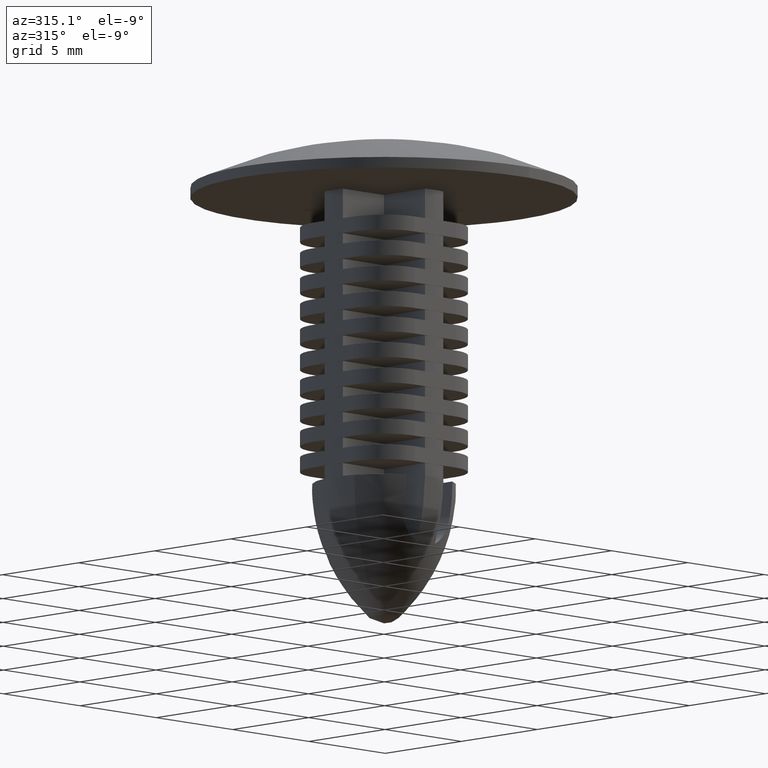
[diagram: clean part render]
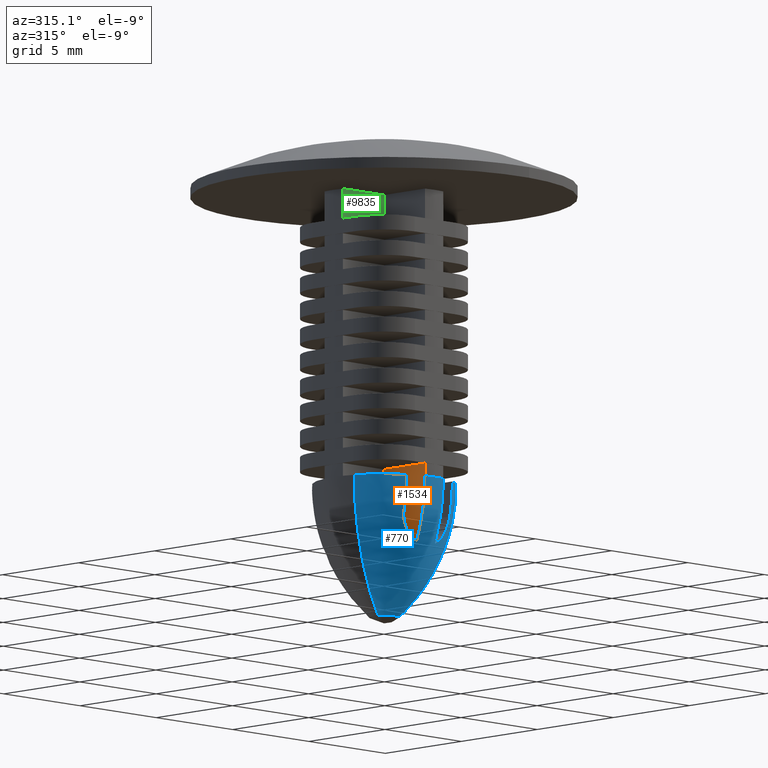
[diagram: same view with three faces highlighted in distinct colors, each labeled with its STEP entity id]
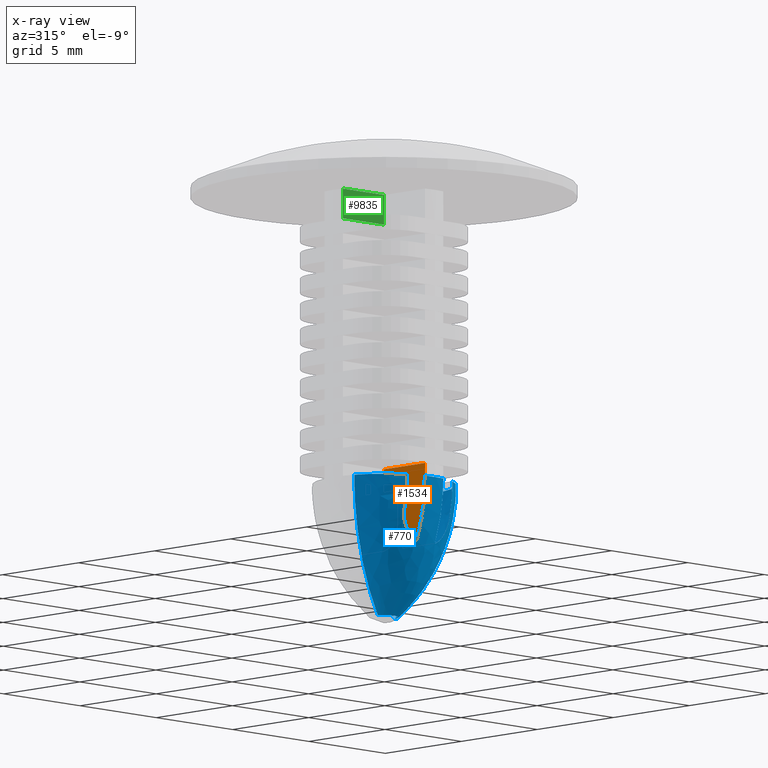
[diagram: x-ray of the same camera — body ghosted, the three highlighted faces saturated]
A machine part, auxiliary view with three faces highlighted in distinct colors.
The next image is the same camera in x-ray (body ghosted, the three faces saturated) — at least one of them is partly hidden behind the body in this view.
Their STEP definitions:

[orange] entity #1534 — the highlighted face is a freeform B-spline surface patch.
#680=CARTESIAN_POINT('',(-0.600000000000009,-3.295830699535320,-16.0));
#681=VERTEX_POINT('',#680);
#695=CARTESIAN_POINT('',(-0.600000000000009,-2.745732762280330,-19.000000000000750));
#696=VERTEX_POINT('',#695);
#697=CARTESIAN_POINT('',(-0.600000000000009,-3.295830699535320,-16.0));
#698=CARTESIAN_POINT('',(-0.600000000000009,-3.295830775537843,-16.513486965900690));
#699=CARTESIAN_POINT('',(-0.600000000000009,-3.249553311811441,-17.023428778580620));
#700=CARTESIAN_POINT('',(-0.600000000000009,-3.144876366745094,-17.593082690397171));
#701=CARTESIAN_POINT('',(-0.600000000000009,-3.132508486333107,-17.656321102280881));
#702=CARTESIAN_POINT('',(-0.600000000000009,-3.106285366387110,-17.782683984900800));
#703=CARTESIAN_POINT('',(-0.600000000000009,-3.092605307555844,-17.844995982628479));
#704=CARTESIAN_POINT('',(-0.600000000000009,-3.049375502360840,-18.031811886654420));
#705=CARTESIAN_POINT('',(-0.600000000000009,-3.017818200647092,-18.155300933164039));
#706=CARTESIAN_POINT('',(-0.600000000000009,-2.915045478865597,-18.522646363084441));
#707=CARTESIAN_POINT('',(-0.600000000000009,-2.835749060682798,-18.763388674102060));
#708=CARTESIAN_POINT('',(-0.600000000000009,-2.745732762280330,-19.000000000000750));
#709=B_SPLINE_CURVE_WITH_KNOTS('',3,(#697,#698,#699,#700,#701,#702,#703,#704,#705,#706,#707,#708),.UNSPECIFIED.,.F.,.U.,(4,2,2,2,2,4),(0.0,0.499999999999997,0.562499999999998,0.625000000000000,0.750000000000000,1.0),.UNSPECIFIED.);
#710=EDGE_CURVE('',#681,#696,#709,.T.);
#986=CARTESIAN_POINT('',(-0.599999999999988,-0.600000000000045,-19.0));
#987=VERTEX_POINT('',#986);
#988=CARTESIAN_POINT('',(-0.599999999999988,-0.600000000000045,-19.0));
#989=CARTESIAN_POINT('',(-0.600000000000009,-2.745732762280330,-19.000000000000750));
#990=QUASI_UNIFORM_CURVE('',1,(#988,#989),.UNSPECIFIED.,.F.,.U.);
#991=EDGE_CURVE('',#987,#696,#990,.T.);
#1166=CARTESIAN_POINT('',(-0.600000000000009,-3.295830699535400,-15.400000000000000));
#1167=VERTEX_POINT('',#1166);
#1181=CARTESIAN_POINT('',(-0.600000000000009,-3.295830699535320,-16.0));
#1182=CARTESIAN_POINT('',(-0.600000000000009,-3.295830699535400,-15.400000000000000));
#1183=QUASI_UNIFORM_CURVE('',1,(#1181,#1182),.UNSPECIFIED.,.F.,.U.);
#1184=EDGE_CURVE('',#681,#1167,#1183,.T.);
#1499=CARTESIAN_POINT('',(-0.600000000000009,-0.599999999999991,-15.400000000000000));
#1500=VERTEX_POINT('',#1499);
#1501=CARTESIAN_POINT('',(-0.599999999999988,-0.600000000000045,-19.0));
#1502=CARTESIAN_POINT('',(-0.600000000000009,-0.599999999999991,-15.400000000000000));
#1503=QUASI_UNIFORM_CURVE('',1,(#1501,#1502),.UNSPECIFIED.,.F.,.U.);
#1504=EDGE_CURVE('',#987,#1500,#1503,.T.);
#1518=CARTESIAN_POINT('',(-0.600000000000009,-3.430487463058681,-15.220179601446770));
#1519=CARTESIAN_POINT('',(-0.600000000000009,-3.430487463058681,-19.179820108875401));
#1520=CARTESIAN_POINT('',(-0.600000000000009,-0.465343188271501,-15.220179601446770));
#1521=CARTESIAN_POINT('',(-0.600000000000009,-0.465343188271501,-19.179820108875401));
#1522=B_SPLINE_SURFACE_WITH_KNOTS('',1,1,((#1518,#1520),(#1519,#1521)),.UNSPECIFIED.,.F.,.F.,.U.,(2,2),(2,2),(0.0,3.959640507428634),(0.0,2.965144274787180),.UNSPECIFIED.);
#1523=ORIENTED_EDGE('',*,*,#1184,.T.);
#1524=CARTESIAN_POINT('',(-0.600000000000009,-3.295830699535400,-15.400000000000000));
#1525=CARTESIAN_POINT('',(-0.600000000000009,-0.599999999999991,-15.400000000000000));
#1526=QUASI_UNIFORM_CURVE('',1,(#1524,#1525),.UNSPECIFIED.,.F.,.U.);
#1527=EDGE_CURVE('',#1167,#1500,#1526,.T.);
#1528=ORIENTED_EDGE('',*,*,#1527,.T.);
#1529=ORIENTED_EDGE('',*,*,#1504,.F.);
#1530=ORIENTED_EDGE('',*,*,#991,.T.);
#1531=ORIENTED_EDGE('',*,*,#710,.F.);
#1532=EDGE_LOOP('',(#1523,#1528,#1529,#1530,#1531));
#1533=FACE_OUTER_BOUND('',#1532,.T.);
#1534=ADVANCED_FACE('',(#1533),#1522,.F.);

[blue] entity #770 — the highlighted face is a freeform B-spline surface patch.
#273=CARTESIAN_POINT('',(-0.646664097964153,-0.244217442504186,-22.222622574502719));
#274=VERTEX_POINT('',#273);
#290=CARTESIAN_POINT('',(-3.133956430944547,-1.183561189352229,-16.000000626975570));
#291=VERTEX_POINT('',#290);
#292=CARTESIAN_POINT('',(-0.646664097964153,-0.244217442504186,-22.222622574502719));
#293=CARTESIAN_POINT('',(-3.133956280274823,-1.183561588311337,-19.679319306924349));
#294=CARTESIAN_POINT('',(-3.133956430944546,-1.183561189352229,-16.000000626975577));
#302=(BOUNDED_CURVE()B_SPLINE_CURVE(2,(#292,#293,#294),.UNSPECIFIED.,.F.,.U.)B_SPLINE_CURVE_WITH_KNOTS((3,3),(0.059366137791939,0.500000000000000),.UNSPECIFIED.)CURVE()GEOMETRIC_REPRESENTATION_ITEM()RATIONAL_B_SPLINE_CURVE((0.873992091231683,0.812464878707263,0.893152553776853))REPRESENTATION_ITEM(''));
#303=EDGE_CURVE('',#274,#291,#302,.T.);
#496=CARTESIAN_POINT('',(3.350000000000004,2.117141E-017,-16.000000626975570));
#497=VERTEX_POINT('',#496);
#511=CARTESIAN_POINT('',(0.691239552805711,0.0,-22.222625685023981));
#512=VERTEX_POINT('',#511);
#513=CARTESIAN_POINT('',(0.691239552805711,0.0,-22.222625685023981));
#514=CARTESIAN_POINT('',(3.350000000000010,0.0,-19.679321967659604));
#515=CARTESIAN_POINT('',(3.350000000000004,2.117141E-017,-16.000000626975570));
#523=(BOUNDED_CURVE()B_SPLINE_CURVE(2,(#513,#514,#515),.UNSPECIFIED.,.F.,.U.)B_SPLINE_CURVE_WITH_KNOTS((3,3),(0.059365847930044,0.500000000000000),.UNSPECIFIED.)CURVE()GEOMETRIC_REPRESENTATION_ITEM()RATIONAL_B_SPLINE_CURVE((0.978547470401030,0.909659634508002,1.0))REPRESENTATION_ITEM(''));
#524=EDGE_CURVE('',#512,#497,#523,.T.);
#544=CARTESIAN_POINT('',(0.440637731900054,0.0,-22.453033217199057));
#545=CARTESIAN_POINT('',(3.350000000000008,0.0,-19.882363111998089));
#546=CARTESIAN_POINT('',(3.350000000000009,0.0,-16.000001253951151));
#547=CARTESIAN_POINT('',(3.350000000000009,0.0,-15.832063827635459));
#548=CARTESIAN_POINT('',(3.343452163770394,0.0,-15.664254099078832));
#549=CARTESIAN_POINT('',(0.440637731900057,-0.440637731900054,-22.453033217199064));
#550=CARTESIAN_POINT('',(3.350000000000009,-3.350000000000009,-19.882363111998082));
#551=CARTESIAN_POINT('',(3.350000000000009,-3.350000000000009,-16.000001253951147));
#552=CARTESIAN_POINT('',(3.350000000000009,-3.350000000000009,-15.832063827635453));
#553=CARTESIAN_POINT('',(3.343452163770393,-3.343452163770393,-15.664254099078832));
#554=CARTESIAN_POINT('',(0.0,-0.440637731900054,-22.453033217199057));
#555=CARTESIAN_POINT('',(0.0,-3.350000000000008,-19.882363111998089));
#556=CARTESIAN_POINT('',(0.0,-3.350000000000009,-16.000001253951151));
#557=CARTESIAN_POINT('',(0.0,-3.350000000000009,-15.832063827635459));
#558=CARTESIAN_POINT('',(0.0,-3.343452163770394,-15.664254099078832));
#559=CARTESIAN_POINT('',(-0.304603640652933,-0.440637731900056,-22.453033217199064));
#560=CARTESIAN_POINT('',(-2.315784877947721,-3.350000000000010,-19.882363111998089));
#561=CARTESIAN_POINT('',(-2.315784877947719,-3.350000000000009,-16.000001253951147));
#562=CARTESIAN_POINT('',(-2.315784877947720,-3.350000000000009,-15.832063827635448));
#563=CARTESIAN_POINT('',(-2.311258495821206,-3.343452163770394,-15.664254099078830));
#564=CARTESIAN_POINT('',(-0.412220710250453,-0.155678183489648,-22.453033217199060));
#565=CARTESIAN_POINT('',(-3.133956262402528,-1.183561635635438,-19.882363111998092));
#566=CARTESIAN_POINT('',(-3.133956262402529,-1.183561635635439,-16.000001253951147));
#567=CARTESIAN_POINT('',(-3.133956262402528,-1.183561635635438,-15.832063827635448));
#568=CARTESIAN_POINT('',(-3.127830700504922,-1.181248272125649,-15.664254099078827));
#576=(BOUNDED_SURFACE()B_SPLINE_SURFACE(2,2,((#544,#549,#554,#559,#564),(#545,#550,#555,#560,#565),(#546,#551,#556,#561,#566),(#547,#552,#557,#562,#567),(#548,#553,#558,#563,#568)),.UNSPECIFIED.,.F.,.F.,.U.)B_SPLINE_SURFACE_WITH_KNOTS((3,2,3),(3,2,3),(0.0,7.405683410211905,7.758000126022874),(0.0,5.550461735799487,9.768812602073769),.UNSPECIFIED.)GEOMETRIC_REPRESENTATION_ITEM()RATIONAL_B_SPLINE_SURFACE(((0.985826641633093,0.697084703373120,0.985826641633093,0.766382771309172,0.880493579692051),(0.905147132272444,0.640035675201402,0.905147132272444,0.703662427426752,0.808434470103496),(1.0,0.707106781186548,1.0,0.777401156495024,0.893152550871875),(0.995487485895367,0.703915951862962,0.995487485895367,0.773893122811382,0.889122187388477),(0.991372248813561,0.701006039816226,0.991372248813561,0.770693932744734,0.885446652891419)))REPRESENTATION_ITEM('')SURFACE());
#577=CARTESIAN_POINT('',(0.691239552805711,0.0,-22.222625685023981));
#578=CARTESIAN_POINT('',(0.691239849571542,-0.691242804476253,-22.222625401131449));
#579=CARTESIAN_POINT('',(-0.000001329138840,-0.691242804371493,-22.222623845870832));
#580=CARTESIAN_POINT('',(-0.477841894312311,-0.691242804299075,-22.222622770751698));
#581=CARTESIAN_POINT('',(-0.646664097964153,-0.244217442504186,-22.222622574502722));
#589=(BOUNDED_CURVE()B_SPLINE_CURVE(2,(#577,#578,#579,#580,#581),.UNSPECIFIED.,.F.,.U.)B_SPLINE_CURVE_WITH_KNOTS((3,2,3),(0.500000000000000,0.750000000000000,0.939999999891143),.UNSPECIFIED.)CURVE()GEOMETRIC_REPRESENTATION_ITEM()RATIONAL_B_SPLINE_CURVE((1.0,0.707106781186548,1.0,0.777401153829310,0.893152553644217))REPRESENTATION_ITEM(''));
#590=EDGE_CURVE('',#512,#274,#589,.T.);
#591=ORIENTED_EDGE('',*,*,#590,.F.);
#592=ORIENTED_EDGE('',*,*,#524,.T.);
#593=CARTESIAN_POINT('',(3.295830699535400,-0.600000000000007,-16.0));
#594=VERTEX_POINT('',#593);
#595=CARTESIAN_POINT('',(3.350000000000004,2.117141E-017,-16.000000626975570));
#596=CARTESIAN_POINT('',(3.350000000000001,-0.302445260927356,-15.999999999999995));
#597=CARTESIAN_POINT('',(3.295830699535399,-0.600000000000006,-16.0));
#605=(BOUNDED_CURVE()B_SPLINE_CURVE(2,(#595,#596,#597),.UNSPECIFIED.,.F.,.U.)B_SPLINE_CURVE_WITH_KNOTS((3,3),(0.499999999999994,1.0),.UNSPECIFIED.)CURVE()GEOMETRIC_REPRESENTATION_ITEM()RATIONAL_B_SPLINE_CURVE((0.991915029781403,0.991915029781403,1.0))REPRESENTATION_ITEM(''));
#606=EDGE_CURVE('',#497,#594,#605,.T.);
#607=ORIENTED_EDGE('',*,*,#606,.T.);
#608=CARTESIAN_POINT('',(1.500000000000000,-2.995413160149935,-16.0));
#609=VERTEX_POINT('',#608);
#610=CARTESIAN_POINT('',(3.295830699535400,-0.600000000000007,-16.0));
#611=CARTESIAN_POINT('',(2.996143745150285,-2.246195774187358,-16.0));
#612=CARTESIAN_POINT('',(1.499999999999999,-2.995413160149932,-16.0));
#620=(BOUNDED_CURVE()B_SPLINE_CURVE(2,(#610,#611,#612),.UNSPECIFIED.,.F.,.U.)CURVE()GEOMETRIC_REPRESENTATION_ITEM()QUASI_UNIFORM_CURVE()RATIONAL_B_SPLINE_CURVE((1.0,0.894613816342990,1.0))REPRESENTATION_ITEM(''));
#621=EDGE_CURVE('',#594,#609,#620,.T.);
#622=ORIENTED_EDGE('',*,*,#621,.T.);
#623=CARTESIAN_POINT('',(1.500000000000000,-2.821270196429195,-17.625227291513252));
#624=VERTEX_POINT('',#623);
#625=CARTESIAN_POINT('',(1.500000000000000,-2.995413160149941,-16.0));
#626=CARTESIAN_POINT('',(1.500000000000000,-2.995413204663491,-16.273328913435400));
#627=CARTESIAN_POINT('',(1.500000000000000,-2.980913768678940,-16.545936521120169));
#628=CARTESIAN_POINT('',(1.500000000000000,-2.937271023615673,-16.953758792029149));
#629=CARTESIAN_POINT('',(1.500000000000000,-2.919005433577717,-17.089811120444221));
#630=CARTESIAN_POINT('',(1.500000000000000,-2.875440936999294,-17.359116574539069));
#631=CARTESIAN_POINT('',(1.500000000000000,-2.850116140327324,-17.492702240445059));
#632=CARTESIAN_POINT('',(1.500000000000000,-2.821270196429190,-17.625227291513252));
#633=B_SPLINE_CURVE_WITH_KNOTS('',3,(#625,#626,#627,#628,#629,#630,#631,#632),.UNSPECIFIED.,.F.,.U.,(4,2,2,4),(0.0,0.500000000000000,0.750000000000000,1.0),.UNSPECIFIED.);
#634=EDGE_CURVE('',#609,#624,#633,.T.);
#635=ORIENTED_EDGE('',*,*,#634,.T.);
#636=CARTESIAN_POINT('',(0.599999999999988,-2.745732762280630,-19.0));
#637=VERTEX_POINT('',#636);
#638=CARTESIAN_POINT('',(1.500000000000000,-2.821270196429190,-17.625227291513252));
#639=CARTESIAN_POINT('',(1.500000000000000,-2.790057297040185,-17.768626692833660));
#640=CARTESIAN_POINT('',(1.479857566270852,-2.765860456900133,-17.909929155618261));
#641=CARTESIAN_POINT('',(1.428635318252537,-2.744585311481918,-18.083829216316889));
#642=CARTESIAN_POINT('',(1.417017207282531,-2.740771684161408,-18.118565087473758));
#643=CARTESIAN_POINT('',(1.391471640313471,-2.734138335899081,-18.186588691024561));
#644=CARTESIAN_POINT('',(1.377513864687048,-2.731300218440415,-18.220006397626829));
#645=CARTESIAN_POINT('',(1.332140938689197,-2.724112654686721,-18.318500000744990));
#646=CARTESIAN_POINT('',(1.297243774238349,-2.721090709169726,-18.381825647906389));
#647=CARTESIAN_POINT('',(1.218018396172008,-2.718005875033776,-18.503699641267929));
#648=CARTESIAN_POINT('',(1.173358475382284,-2.717966482322654,-18.562516526749970));
#649=CARTESIAN_POINT('',(1.077256209752716,-2.720095400434484,-18.671554334455031));
#650=CARTESIAN_POINT('',(1.025578034178907,-2.722238285177093,-18.722244013755411));
#651=CARTESIAN_POINT('',(0.942646373096618,-2.726408359693501,-18.792588338300050));
#652=CARTESIAN_POINT('',(0.914096506775513,-2.727958480352698,-18.815084311864371));
#653=CARTESIAN_POINT('',(0.855144738257606,-2.731275273593784,-18.858134274707179));
#654=CARTESIAN_POINT('',(0.824709257891473,-2.733043986621814,-18.878697943757960));
#655=CARTESIAN_POINT('',(0.731732787155123,-2.738451401760531,-18.936678118866279));
#656=CARTESIAN_POINT('',(0.667174652368163,-2.742207202435441,-18.970682578167189));
#657=CARTESIAN_POINT('',(0.599999999999988,-2.745732762280630,-19.0));
#658=B_SPLINE_CURVE_WITH_KNOTS('',3,(#638,#639,#640,#641,#642,#643,#644,#645,#646,#647,#648,#649,#650,#651,#652,#653,#654,#655,#656,#657),.UNSPECIFIED.,.F.,.U.,(4,2,2,2,2,2,2,2,2,4),(0.0,0.249999999999997,0.312499999999997,0.374999999999998,0.499999999999999,0.625000000000000,0.750000000000001,0.812500000000002,0.875000000000002,1.0),.UNSPECIFIED.);
#659=EDGE_CURVE('',#624,#637,#658,.T.);
#660=ORIENTED_EDGE('',*,*,#659,.T.);
#661=CARTESIAN_POINT('',(0.599999999999991,-3.295830699535310,-16.0));
#662=VERTEX_POINT('',#661);
#663=CARTESIAN_POINT('',(0.600000000000009,-2.745732762280619,-18.999999999999961));
#664=CARTESIAN_POINT('',(0.600000000000009,-2.835569811217700,-18.763859838262668));
#665=CARTESIAN_POINT('',(0.600000000000009,-2.914775245168330,-18.523485190039128));
#666=CARTESIAN_POINT('',(0.600000000000009,-3.017495992514557,-18.156515734631540));
#667=CARTESIAN_POINT('',(0.600000000000009,-3.049050095833043,-18.033122712626628));
#668=CARTESIAN_POINT('',(0.600000000000009,-3.085083670803928,-17.877523636341799));
#669=CARTESIAN_POINT('',(0.600000000000009,-3.092119836093876,-17.846335892513430));
#670=CARTESIAN_POINT('',(0.600000000000009,-3.105849390739695,-17.783823879967240));
#671=CARTESIAN_POINT('',(0.600000000000009,-3.112527662963392,-17.752576901073802));
#672=CARTESIAN_POINT('',(0.600000000000009,-3.132282841699175,-17.657460647935871));
#673=CARTESIAN_POINT('',(0.600000000000009,-3.144699563661173,-17.594012836913080));
#674=CARTESIAN_POINT('',(0.600000000000009,-3.249742564576795,-17.022653343889090));
#675=CARTESIAN_POINT('',(0.600000000000009,-3.295830775385470,-16.512457643726759));
#676=CARTESIAN_POINT('',(0.600000000000009,-3.295830699535312,-15.999999999999970));
#677=B_SPLINE_CURVE_WITH_KNOTS('',3,(#663,#664,#665,#666,#667,#668,#669,#670,#671,#672,#673,#674,#675,#676),.UNSPECIFIED.,.F.,.U.,(4,2,2,2,2,2,4),(0.0,0.249999999999995,0.374999999999992,0.406249999999990,0.437499999999989,0.499999999999989,1.0),.UNSPECIFIED.);
#678=EDGE_CURVE('',#637,#662,#677,.T.);
#679=ORIENTED_EDGE('',*,*,#678,.T.);
#680=CARTESIAN_POINT('',(-0.600000000000009,-3.295830699535320,-16.0));
#681=VERTEX_POINT('',#680);
#682=CARTESIAN_POINT('',(0.599999999999991,-3.295830699535310,-16.0));
#683=CARTESIAN_POINT('',(-6.505213E-015,-3.405059611096530,-16.000000000000004));
#684=CARTESIAN_POINT('',(-0.600000000000009,-3.295830699535320,-16.0));
#692=(BOUNDED_CURVE()B_SPLINE_CURVE(2,(#682,#683,#684),.UNSPECIFIED.,.F.,.U.)CURVE()GEOMETRIC_REPRESENTATION_ITEM()QUASI_UNIFORM_CURVE()RATIONAL_B_SPLINE_CURVE((1.0,0.983830059562805,1.0))REPRESENTATION_ITEM(''));
#693=EDGE_CURVE('',#662,#681,#692,.T.);
#694=ORIENTED_EDGE('',*,*,#693,.T.);
#695=CARTESIAN_POINT('',(-0.600000000000009,-2.745732762280330,-19.000000000000750));
#696=VERTEX_POINT('',#695);
#697=CARTESIAN_POINT('',(-0.600000000000009,-3.295830699535320,-16.0));
#698=CARTESIAN_POINT('',(-0.600000000000009,-3.295830775537843,-16.513486965900690));
#699=CARTESIAN_POINT('',(-0.600000000000009,-3.249553311811441,-17.023428778580620));
#700=CARTESIAN_POINT('',(-0.600000000000009,-3.144876366745094,-17.593082690397171));
#701=CARTESIAN_POINT('',(-0.600000000000009,-3.132508486333107,-17.656321102280881));
#702=CARTESIAN_POINT('',(-0.600000000000009,-3.106285366387110,-17.782683984900800));
#703=CARTESIAN_POINT('',(-0.600000000000009,-3.092605307555844,-17.844995982628479));
#704=CARTESIAN_POINT('',(-0.600000000000009,-3.049375502360840,-18.031811886654420));
#705=CARTESIAN_POINT('',(-0.600000000000009,-3.017818200647092,-18.155300933164039));
#706=CARTESIAN_POINT('',(-0.600000000000009,-2.915045478865597,-18.522646363084441));
#707=CARTESIAN_POINT('',(-0.600000000000009,-2.835749060682798,-18.763388674102060));
#708=CARTESIAN_POINT('',(-0.600000000000009,-2.745732762280330,-19.000000000000750));
#709=B_SPLINE_CURVE_WITH_KNOTS('',3,(#697,#698,#699,#700,#701,#702,#703,#704,#705,#706,#707,#708),.UNSPECIFIED.,.F.,.U.,(4,2,2,2,2,4),(0.0,0.499999999999997,0.562499999999998,0.625000000000000,0.750000000000000,1.0),.UNSPECIFIED.);
#710=EDGE_CURVE('',#681,#696,#709,.T.);
#711=ORIENTED_EDGE('',*,*,#710,.T.);
#712=CARTESIAN_POINT('',(-1.500000000000000,-2.821270196429195,-17.625227291513252));
#713=VERTEX_POINT('',#712);
#714=CARTESIAN_POINT('',(-0.600000000000009,-2.745732762280330,-19.000000000000750));
#715=CARTESIAN_POINT('',(-0.734399069342689,-2.738679030770162,-18.941343437276750));
#716=CARTESIAN_POINT('',(-0.857084143893479,-2.730731848104374,-18.864844372878629));
#717=CARTESIAN_POINT('',(-0.996219322743218,-2.723709475847797,-18.747223189289159));
#718=CARTESIAN_POINT('',(-1.023425694110740,-2.722451991722043,-18.722466578314549));
#719=CARTESIAN_POINT('',(-1.075619125088172,-2.720389877233130,-18.671352380405981));
#720=CARTESIAN_POINT('',(-1.100649364878243,-2.719581887506894,-18.644974859205298));
#721=CARTESIAN_POINT('',(-1.172612302726321,-2.717973792682588,-18.563436699043208));
#722=CARTESIAN_POINT('',(-1.216433215997071,-2.717987912717259,-18.505882775366281));
#723=CARTESIAN_POINT('',(-1.275918967312295,-2.720239748455950,-18.414750407962721));
#724=CARTESIAN_POINT('',(-1.294702625585995,-2.721362441556729,-18.383569634642338));
#725=CARTESIAN_POINT('',(-1.330127254018372,-2.724458901105552,-18.319561134991542));
#726=CARTESIAN_POINT('',(-1.346703536259148,-2.726432482419866,-18.286823635640179));
#727=CARTESIAN_POINT('',(-1.392382765404653,-2.733630283394692,-18.187855750750810));
#728=CARTESIAN_POINT('',(-1.417752137977915,-2.740155769462060,-18.120355034647009));
#729=CARTESIAN_POINT('',(-1.448402693033716,-2.752752572838162,-18.016919505506710));
#730=CARTESIAN_POINT('',(-1.457380903926126,-2.757419210656772,-17.982075285389641));
#731=CARTESIAN_POINT('',(-1.472840831227585,-2.767721267048560,-17.911652632101280));
#732=CARTESIAN_POINT('',(-1.479336903810400,-2.773375798265892,-17.875964976163250));
#733=CARTESIAN_POINT('',(-1.494879754432398,-2.791694391818131,-17.768624521974861));
#734=CARTESIAN_POINT('',(-1.500000000000640,-2.805653425633934,-17.696974409736981));
#735=CARTESIAN_POINT('',(-1.500000000000000,-2.821270196429195,-17.625227291513252));
#736=B_SPLINE_CURVE_WITH_KNOTS('',3,(#714,#715,#716,#717,#718,#719,#720,#721,#722,#723,#724,#725,#726,#727,#728,#729,#730,#731,#732,#733,#734,#735),.UNSPECIFIED.,.F.,.U.,(4,2,2,2,2,2,2,2,2,2,4),(0.0,0.249999999999991,0.312499999999989,0.374999999999988,0.499999999999985,0.562499999999986,0.624999999999987,0.749999999999990,0.812499999999994,0.874999999999998,1.0),.UNSPECIFIED.);
#737=EDGE_CURVE('',#696,#713,#736,.T.);
#738=ORIENTED_EDGE('',*,*,#737,.T.);
#739=CARTESIAN_POINT('',(-1.500000000000000,-2.995413160149935,-16.0));
#740=VERTEX_POINT('',#739);
#741=CARTESIAN_POINT('',(-1.500000000000000,-2.821270196429189,-17.625227291513252));
#742=CARTESIAN_POINT('',(-1.500000000000000,-2.850302920879862,-17.491844126654389));
#743=CARTESIAN_POINT('',(-1.500000000000000,-2.875702215074015,-17.357692455263749));
#744=CARTESIAN_POINT('',(-1.500000000000000,-2.908392420232623,-17.155320946847588));
#745=CARTESIAN_POINT('',(-1.500000000000000,-2.918386957442206,-17.087672953584640));
#746=CARTESIAN_POINT('',(-1.500000000000000,-2.936569980740262,-16.951994969336109));
#747=CARTESIAN_POINT('',(-1.500000000000000,-2.944779755826939,-16.883774637163420));
#748=CARTESIAN_POINT('',(-1.500000000000000,-2.981140284232677,-16.543078459701238));
#749=CARTESIAN_POINT('',(-1.500000000000000,-2.995413204318145,-16.271208376653249));
#750=CARTESIAN_POINT('',(-1.500000000000000,-2.995413160149939,-16.0));
#751=B_SPLINE_CURVE_WITH_KNOTS('',3,(#741,#742,#743,#744,#745,#746,#747,#748,#749,#750),.UNSPECIFIED.,.F.,.U.,(4,2,2,2,4),(0.0,0.249999999999995,0.374999999999996,0.499999999999997,1.0),.UNSPECIFIED.);
#752=EDGE_CURVE('',#713,#740,#751,.T.);
#753=ORIENTED_EDGE('',*,*,#752,.T.);
#754=CARTESIAN_POINT('',(-1.499999999999998,-2.995413160149933,-16.0));
#755=CARTESIAN_POINT('',(-2.671190609370744,-2.408921140475364,-16.000000000000004));
#756=CARTESIAN_POINT('',(-3.133956430944547,-1.183561189352228,-16.000000626975574));
#764=(BOUNDED_CURVE()B_SPLINE_CURVE(2,(#754,#755,#756),.UNSPECIFIED.,.F.,.U.)B_SPLINE_CURVE_WITH_KNOTS((3,3),(0.0,0.801143766342725),.UNSPECIFIED.)CURVE()GEOMETRIC_REPRESENTATION_ITEM()RATIONAL_B_SPLINE_CURVE((1.0,0.915570515904536,0.966421341566298))REPRESENTATION_ITEM(''));
#765=EDGE_CURVE('',#740,#291,#764,.T.);
#766=ORIENTED_EDGE('',*,*,#765,.T.);
#767=ORIENTED_EDGE('',*,*,#303,.F.);
#768=EDGE_LOOP('',(#591,#592,#607,#622,#635,#660,#679,#694,#711,#738,#753,#766,#767));
#769=FACE_OUTER_BOUND('',#768,.T.);
#770=ADVANCED_FACE('',(#769),#576,.T.);

[green] entity #9835 — the highlighted face is a freeform B-spline surface patch.
#9093=CARTESIAN_POINT('',(-0.600000000000009,-0.599999999999991,-3.900000000000000));
#9094=VERTEX_POINT('',#9093);
#9100=CARTESIAN_POINT('',(-3.295830699535400,-0.599999999999991,-3.900000000000000));
#9101=VERTEX_POINT('',#9100);
#9102=CARTESIAN_POINT('',(-0.600000000000009,-0.599999999999991,-3.900000000000000));
#9103=CARTESIAN_POINT('',(-3.295830699535400,-0.599999999999991,-3.900000000000000));
#9104=QUASI_UNIFORM_CURVE('',1,(#9102,#9103),.UNSPECIFIED.,.F.,.U.);
#9105=EDGE_CURVE('',#9094,#9101,#9104,.T.);
#9499=CARTESIAN_POINT('',(-0.600000000000009,-0.599999999999991,-2.500000000000045));
#9500=VERTEX_POINT('',#9499);
#9593=CARTESIAN_POINT('',(-3.295830699535400,-0.599999999999991,-2.500000000000060));
#9594=VERTEX_POINT('',#9593);
#9608=CARTESIAN_POINT('',(-0.600000000000009,-0.599999999999991,-2.500000000000045));
#9609=CARTESIAN_POINT('',(-3.295830699535400,-0.599999999999991,-2.500000000000060));
#9610=QUASI_UNIFORM_CURVE('',1,(#9608,#9609),.UNSPECIFIED.,.F.,.U.);
#9611=EDGE_CURVE('',#9500,#9594,#9610,.T.);
#9810=CARTESIAN_POINT('',(-3.295830699535400,-0.599999999999991,-3.900000000000000));
#9811=CARTESIAN_POINT('',(-3.295830699535400,-0.599999999999991,-2.500000000000060));
#9812=QUASI_UNIFORM_CURVE('',1,(#9810,#9811),.UNSPECIFIED.,.F.,.U.);
#9813=EDGE_CURVE('',#9101,#9594,#9812,.T.);
#9820=CARTESIAN_POINT('',(-3.430487463058680,-0.599999999999991,-3.969930102424113));
#9821=CARTESIAN_POINT('',(-3.430487463058680,-0.599999999999991,-2.430069960160810));
#9822=CARTESIAN_POINT('',(-0.465343188271520,-0.599999999999991,-3.969930102424113));
#9823=CARTESIAN_POINT('',(-0.465343188271520,-0.599999999999991,-2.430069960160810));
#9824=B_SPLINE_SURFACE_WITH_KNOTS('',1,1,((#9820,#9822),(#9821,#9823)),.UNSPECIFIED.,.F.,.F.,.U.,(2,2),(2,2),(0.041708272366598,0.958291690380499),(0.0,2.965144274787161),.UNSPECIFIED.);
#9825=ORIENTED_EDGE('',*,*,#9105,.F.);
#9826=CARTESIAN_POINT('',(-0.600000000000009,-0.599999999999991,-3.900000000000000));
#9827=CARTESIAN_POINT('',(-0.600000000000009,-0.599999999999991,-2.500000000000045));
#9828=QUASI_UNIFORM_CURVE('',1,(#9826,#9827),.UNSPECIFIED.,.F.,.U.);
#9829=EDGE_CURVE('',#9094,#9500,#9828,.T.);
#9830=ORIENTED_EDGE('',*,*,#9829,.T.);
#9831=ORIENTED_EDGE('',*,*,#9611,.T.);
#9832=ORIENTED_EDGE('',*,*,#9813,.F.);
#9833=EDGE_LOOP('',(#9825,#9830,#9831,#9832));
#9834=FACE_OUTER_BOUND('',#9833,.T.);
#9835=ADVANCED_FACE('',(#9834),#9824,.F.);